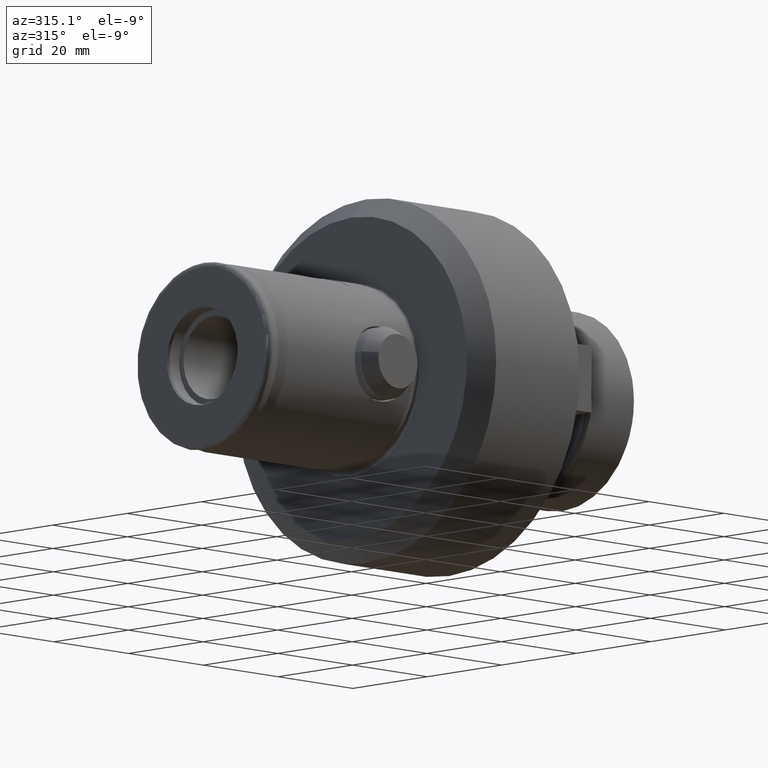
[diagram: clean part render]
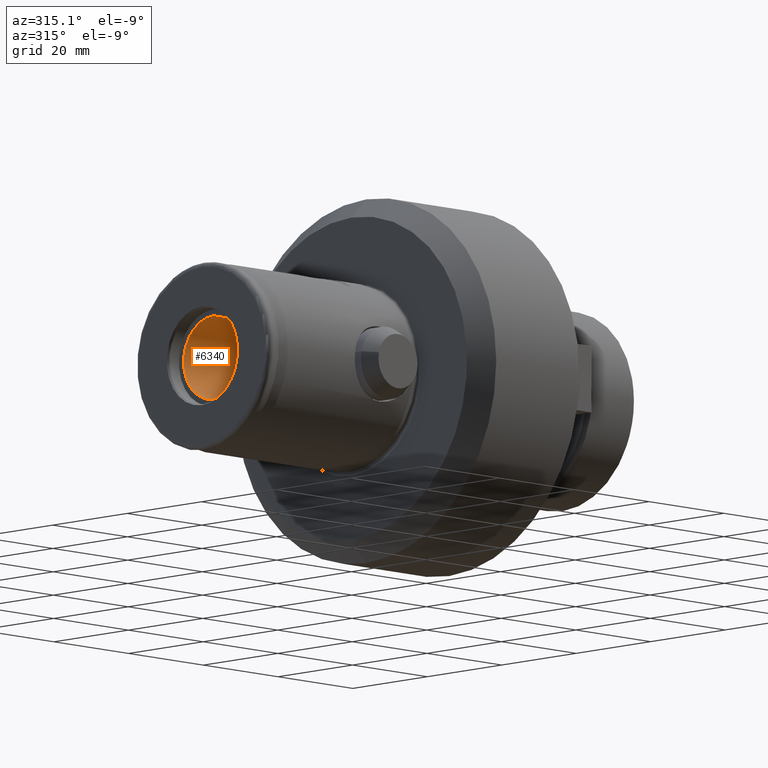
[diagram: same view with one face highlighted and labeled with its STEP entity id]
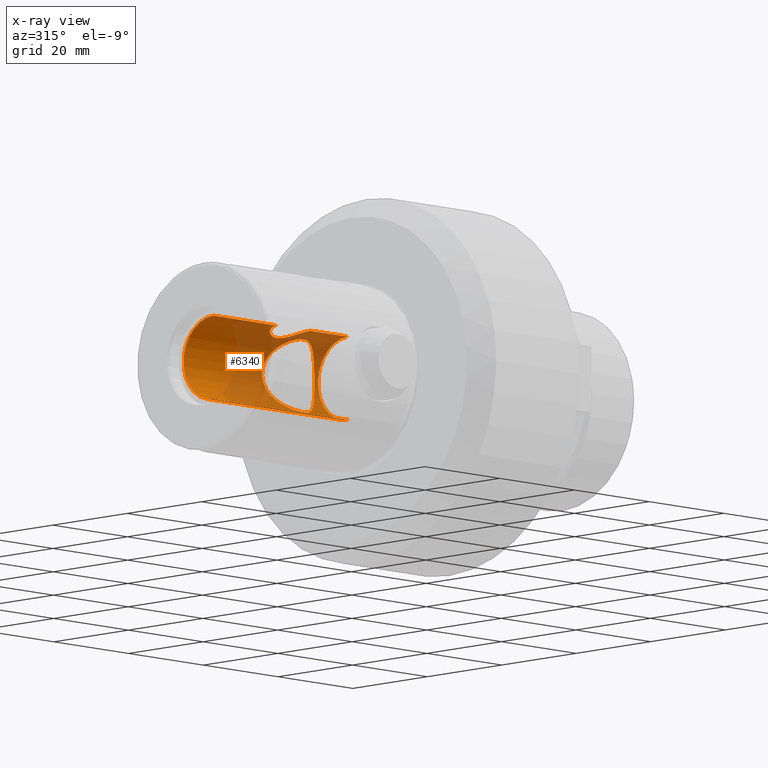
[diagram: x-ray of the same camera — body ghosted, the highlighted face saturated]
A machine part, auxiliary view. The second image highlights one B-rep face of the part: STEP entity #6340.
The next image is the same camera in x-ray: the body ghosted, the highlighted face saturated — about 55% of this face is hidden behind the body in this view.
In plain terms, the highlighted cylindrical surface (partial cylindrical patch) has radius 8 mm, axis along (-1, -0, -0).
Its self-contained STEP definition (entity closure, byte-faithful):
#2 = CARTESIAN_POINT ( 'NONE',  ( 30.75341472122459100, 3.872983346207416100, -7.000000000000000900 ) ) ;
#10 = CARTESIAN_POINT ( 'NONE',  ( 35.55855141161418900, 5.978557785983367600, 5.329700761963415800 ) ) ;
#85 = CARTESIAN_POINT ( 'NONE',  ( 34.13793107031343500, 4.982573697057826900, 6.260956148259884600 ) ) ;
#117 = CARTESIAN_POINT ( 'NONE',  ( 32.22090044364512100, 4.055153514021367500, -6.896709446665013000 ) ) ;
#165 = ORIENTED_EDGE ( 'NONE', *, *, #1801, .T. ) ;
#233 = EDGE_CURVE ( 'NONE', #4916, #8439, #515, .T. ) ;
#282 = CARTESIAN_POINT ( 'NONE',  ( 28.96936630641344800, 0.6025897533263323600, 7.982657568880966900 ) ) ;
#311 = CARTESIAN_POINT ( 'NONE',  ( 28.99999999999999600, 0.3039552728273297600, 8.000000000000001800 ) ) ;
#337 = CARTESIAN_POINT ( 'NONE',  ( 20.23920598036966500, 1.477341456959626200, 7.867333830361594100 ) ) ;
#366 = CARTESIAN_POINT ( 'NONE',  ( 20.60770144812946100, 2.277221731124198900, 7.673303683629273800 ) ) ;
#398 = CARTESIAN_POINT ( 'NONE',  ( 28.75628956257054700, 1.468402972155207400, 7.865408154721382800 ) ) ;
#499 = CARTESIAN_POINT ( 'NONE',  ( 29.09602210038190200, 4.311558885268359700, 6.739864978118574400 ) ) ;
#515 = B_SPLINE_CURVE_WITH_KNOTS ( 'NONE', 3,
 ( #3462, #2117, #6102, #6008, #2097, #4751, #3991, #8100, #85, #7454, #7478, #8128, #10, #2712, #3352, #6078, #1454, #4697, #5406, #4665, #660, #2741, #6696, #2679, #1367, #5351, #7363, #7430, #1335, #6040, #4724, #5463, #6815, #4101, #725, #2766, #1391, #2061, #6745, #750, #6129, #4080, #4784, #773, #5437, #117, #2002, #2798, #4338, #3117 ),
 .UNSPECIFIED., .F., .F.,
 ( 4, 2, 2, 2, 2, 2, 2, 2, 2, 2, 2, 2, 2, 2, 2, 2, 2, 2, 2, 2, 2, 2, 2, 2, 4 ),
 ( 4.590671271343872100E-017, 0.0007410764118145821300, 0.001482152823629118100, 0.002964305647258171100, 0.003705382059072706500, 0.004446458470887242700, 0.005928611294516329200, 0.006669687706330873700, 0.007410764118145417300, 0.008892916941774502800, 0.01037506976540359200, 0.01111614617721813300, 0.01185722258903267600, 0.01259829900084721700, 0.01333937541266175900, 0.01408045182447629900, 0.01482152823629084000, 0.01630368105991992700, 0.01778583388354901300, 0.01926798670717809800, 0.02075013953080718400, 0.02149121594262173900, 0.02223229235443628700, 0.02297336876625083800, 0.02371444517806538900 ),
 .UNSPECIFIED. ) ;
#533 = CARTESIAN_POINT ( 'NONE',  ( 28.66592305446396000, 4.517999929900974500, 6.603256513101743300 ) ) ;
#601 = DIRECTION ( 'NONE',  ( -1.000000000000000000, -0.0000000000000000000, -0.0000000000000000000 ) ) ;
#660 = CARTESIAN_POINT ( 'NONE',  ( 37.73937749234770000, 7.772813829932157900, 1.954234886555770600 ) ) ;
#682 = CARTESIAN_POINT ( 'NONE',  ( 26.94886962702532400, 5.603198860898251300, -5.712612966352318200 ) ) ;
#715 = EDGE_CURVE ( 'NONE', #8439, #4916, #8551, .T. ) ;
#725 = CARTESIAN_POINT ( 'NONE',  ( 36.98704210979404600, 7.129069216778431100, -3.654907970464085700 ) ) ;
#750 = CARTESIAN_POINT ( 'NONE',  ( 34.52085072694406900, 5.228052780230492600, -6.065323672382846500 ) ) ;
#773 = CARTESIAN_POINT ( 'NONE',  ( 32.90538900262170300, 4.312166394369731900, -6.739482880393575600 ) ) ;
#782 = EDGE_CURVE ( 'NONE', #5186, #2778, #3894, .T. ) ;
#922 = ORIENTED_EDGE ( 'NONE', *, *, #782, .T. ) ;
#969 = CARTESIAN_POINT ( 'NONE',  ( 24.01259493686570000, 7.988971967116976100, 0.4866045937506657800 ) ) ;
#972 = CARTESIAN_POINT ( 'NONE',  ( 21.11991901977559700, 2.984551923795119200, 7.425719981801746500 ) ) ;
#1000 = CARTESIAN_POINT ( 'NONE',  ( 21.75218630588040400, 3.575326788833691300, 7.158923600411578800 ) ) ;
#1048 = DIRECTION ( 'NONE',  ( -1.000000000000000000, -0.0000000000000000000, -0.0000000000000000000 ) ) ;
#1056 = CARTESIAN_POINT ( 'NONE',  ( 24.80437404865701000, 4.499964798875890200, 6.614402226255022800 ) ) ;
#1116 = CARTESIAN_POINT ( 'NONE',  ( 24.50650095462512100, 7.560630500432985500, -2.624662021152091900 ) ) ;
#1152 = CARTESIAN_POINT ( 'NONE',  ( 0.0000000000000000000, 0.0000000000000000000, 8.000000000000000000 ) ) ;
#1178 = DIRECTION ( 'NONE',  ( -1.000000000000000000, -0.0000000000000000000, -0.0000000000000000000 ) ) ;
#1208 = EDGE_LOOP ( 'NONE', ( #1492, #1802, #922, #4167, #6855, #165 ) ) ;
#1227 = CARTESIAN_POINT ( 'NONE',  ( 28.45650230898550200, 4.630570762695055200, 6.525251823769629300 ) ) ;
#1275 = VERTEX_POINT ( 'NONE', #6981 ) ;
#1335 = CARTESIAN_POINT ( 'NONE',  ( 37.89657681984990500, 7.909623561254247400, -1.223333147197737600 ) ) ;
#1367 = CARTESIAN_POINT ( 'NONE',  ( 37.99967623635704700, 7.999716706867209500, 0.2553837469404187700 ) ) ;
#1391 = CARTESIAN_POINT ( 'NONE',  ( 36.18332884090522600, 6.467625354216546700, -4.724130263467351700 ) ) ;
#1454 = CARTESIAN_POINT ( 'NONE',  ( 36.59568461713910600, 6.804890004860985700, 4.211636175206129100 ) ) ;
#1462 = CIRCLE ( 'NONE', #5340, 8.000000000000000000 ) ;
#1492 = ORIENTED_EDGE ( 'NONE', *, *, #4373, .F. ) ;
#1499 = DIRECTION ( 'NONE',  ( 0.0000000000000000000, 0.0000000000000000000, 1.000000000000000000 ) ) ;
#1516 = EDGE_CURVE ( 'NONE', #7734, #1275, #8394, .T. ) ;
#1526 = FACE_OUTER_BOUND ( 'NONE', #1208, .T. ) ;
#1636 = CYLINDRICAL_SURFACE ( 'NONE', #2781, 8.000000000000000000 ) ;
#1672 = CARTESIAN_POINT ( 'NONE',  ( 20.14945777583613000, 1.188220059690631400, 7.916740125071215500 ) ) ;
#1698 = CARTESIAN_POINT ( 'NONE',  ( 25.97544591273078400, 4.261330998162102400, 6.771907494521349800 ) ) ;
#1784 = CARTESIAN_POINT ( 'NONE',  ( 24.27183329226400600, 7.763170223860409900, -1.946708591556181000 ) ) ;
#1801 = EDGE_CURVE ( 'NONE', #1275, #4336, #4508, .T. ) ;
#1802 = ORIENTED_EDGE ( 'NONE', *, *, #3594, .F. ) ;
#1808 = CARTESIAN_POINT ( 'NONE',  ( 25.01472903792675200, 7.127611959860360000, 3.657263872402699300 ) ) ;
#1815 = CARTESIAN_POINT ( 'NONE',  ( 29.78019303000144500, 4.054865476716300600, -6.896872378908236500 ) ) ;
#1840 = CARTESIAN_POINT ( 'NONE',  ( 24.20401643006870900, 7.822069272577855300, 1.695330024425967900 ) ) ;
#1875 = CARTESIAN_POINT ( 'NONE',  ( 39.00000000000000700, 0.0000000000000000000, 0.0000000000000000000 ) ) ;
#1878 = CARTESIAN_POINT ( 'NONE',  ( 24.10246520295656600, 7.910458981541827600, 1.218010795547848100 ) ) ;
#2002 = CARTESIAN_POINT ( 'NONE',  ( 31.98474249579056700, 3.988991554300620900, -6.934747940482933100 ) ) ;
#2055 = CARTESIAN_POINT ( 'NONE',  ( 24.05466032900179100, 7.952056936992425700, -0.9989638608996093100 ) ) ;
#2061 = CARTESIAN_POINT ( 'NONE',  ( 35.56719605291187500, 5.985195037363310700, -5.322125969331659200 ) ) ;
#2097 = CARTESIAN_POINT ( 'NONE',  ( 32.21939060143660800, 4.054646151562716100, 6.897013289270022400 ) ) ;
#2117 = CARTESIAN_POINT ( 'NONE',  ( 31.25150952951509000, 3.872983346207413500, 7.000000000000000000 ) ) ;
#2173 = DIRECTION ( 'NONE',  ( 0.0000000000000000000, 0.0000000000000000000, 1.000000000000000000 ) ) ;
#2230 = CARTESIAN_POINT ( 'NONE',  ( 23.99956464490029600, 8.000380935567911000, 0.2374143082818990800 ) ) ;
#2285 = EDGE_LOOP ( 'NONE', ( #7072, #6841 ) ) ;
#2322 = CARTESIAN_POINT ( 'NONE',  ( 20.00000000000000000, 0.3038662765850915800, 8.000000000000001800 ) ) ;
#2348 = CARTESIAN_POINT ( 'NONE',  ( 22.23186783471452400, 3.897309100564185300, 6.988857598931407000 ) ) ;
#2379 = CARTESIAN_POINT ( 'NONE',  ( 26.77387740547222000, 3.894053566602881000, 6.990703642075265700 ) ) ;
#2412 = CARTESIAN_POINT ( 'NONE',  ( 28.88079942607053100, 1.039559419402969800, 7.933523824993354600 ) ) ;
#2435 = CARTESIAN_POINT ( 'NONE',  ( 0.0000000000000000000, 0.0000000000000000000, 0.0000000000000000000 ) ) ;
#2484 = CARTESIAN_POINT ( 'NONE',  ( 26.94395453693563900, 5.606767190425704200, 5.709096391447106500 ) ) ;
#2569 = CARTESIAN_POINT ( 'NONE',  ( 24.06404719125111300, 7.944009374381279200, 0.9763053732221804700 ) ) ;
#2670 = CARTESIAN_POINT ( 'NONE',  ( 27.85707477994499800, 4.977010234343023100, -6.269956170842671200 ) ) ;
#2679 = CARTESIAN_POINT ( 'NONE',  ( 37.98639055055733100, 7.988084185479391600, 0.5012865904527222800 ) ) ;
#2705 = CARTESIAN_POINT ( 'NONE',  ( 30.50655199385513300, 3.896853369577716600, -6.986939365355582700 ) ) ;
#2712 = CARTESIAN_POINT ( 'NONE',  ( 36.02350202804206700, 6.342417771066957100, 4.879646777212258300 ) ) ;
#2741 = CARTESIAN_POINT ( 'NONE',  ( 37.89387460141014000, 7.907266498770184200, 1.238569224581665100 ) ) ;
#2766 = CARTESIAN_POINT ( 'NONE',  ( 36.46904912723343300, 6.699959181163977800, -4.392325937463684900 ) ) ;
#2778 = VERTEX_POINT ( 'NONE', #7395 ) ;
#2781 = AXIS2_PLACEMENT_3D ( 'NONE', #2435, #3134, #7829 ) ;
#2798 = CARTESIAN_POINT ( 'NONE',  ( 31.49578123250102700, 3.897195769751125500, -6.986748009664292000 ) ) ;
#2992 = CARTESIAN_POINT ( 'NONE',  ( 28.99999999999999600, 0.0000000000000000000, 8.000000000000000000 ) ) ;
#3017 = CARTESIAN_POINT ( 'NONE',  ( 23.02418142182259300, 4.261139167944569400, 6.772019438513685200 ) ) ;
#3048 = CARTESIAN_POINT ( 'NONE',  ( 27.47656300916169400, 3.387192595048163400, 7.250943801692805800 ) ) ;
#3104 = CARTESIAN_POINT ( 'NONE',  ( 25.14813011631007800, 7.017061381128079300, -3.847834655708963300 ) ) ;
#3117 = CARTESIAN_POINT ( 'NONE',  ( 31.00000000000000000, 3.872983346207414800, -7.000000000000000000 ) ) ;
#3134 = DIRECTION ( 'NONE',  ( -1.000000000000000000, -0.0000000000000000000, -0.0000000000000000000 ) ) ;
#3158 = CARTESIAN_POINT ( 'NONE',  ( 29.31751508531601400, 4.217140374111857600, 6.798871005101089400 ) ) ;
#3183 = CARTESIAN_POINT ( 'NONE',  ( 30.50233205902819100, 3.897572823664293900, 6.986533793702783200 ) ) ;
#3251 = CARTESIAN_POINT ( 'NONE',  ( 25.81104634559652300, 6.472103622738511100, 4.718209453474950800 ) ) ;
#3287 = CARTESIAN_POINT ( 'NONE',  ( 26.77525854670176400, 5.730294773337267800, -5.585463241233657800 ) ) ;
#3352 = CARTESIAN_POINT ( 'NONE',  ( 36.17397533346737500, 6.462424403061164400, 4.719993161877292600 ) ) ;
#3431 = CARTESIAN_POINT ( 'NONE',  ( 24.00090422832445500, 7.999208800510261100, -0.5123487462078555300 ) ) ;
#3462 = CARTESIAN_POINT ( 'NONE',  ( 31.00000000000002800, 3.872983346207531600, 7.000000000000008000 ) ) ;
#3492 = CARTESIAN_POINT ( 'NONE',  ( 31.00000000000000000, 3.872983346207414800, -7.000000000000000000 ) ) ;
#3518 = FACE_BOUND ( 'NONE', #2285, .T. ) ;
#3594 = EDGE_CURVE ( 'NONE', #5186, #5783, #1462, .T. ) ;
#3685 = CARTESIAN_POINT ( 'NONE',  ( 23.31227099659225700, 4.350650956824873500, 6.713932718652853500 ) ) ;
#3712 = CARTESIAN_POINT ( 'NONE',  ( 23.89654528496663100, 4.469307143233852900, 6.635536900519603900 ) ) ;
#3883 = CARTESIAN_POINT ( 'NONE',  ( 24.26770867588235000, 7.766746700706380400, 1.932364216009924800 ) ) ;
#3894 = LINE ( 'NONE', #4369, #5383 ) ;
#3910 = CARTESIAN_POINT ( 'NONE',  ( 26.77208157100739400, 5.732635112101784000, 5.583075651238127400 ) ) ;
#3914 = CARTESIAN_POINT ( 'NONE',  ( 31.00000000000002800, 3.872983346207531600, 7.000000000000008000 ) ) ;
#3991 = CARTESIAN_POINT ( 'NONE',  ( 33.33618302869197000, 4.511018792922472500, 6.613199792375693800 ) ) ;
#4080 = CARTESIAN_POINT ( 'NONE',  ( 33.54334667312675600, 4.630533659732758900, -6.525250478903919000 ) ) ;
#4101 = CARTESIAN_POINT ( 'NONE',  ( 37.21333961301601800, 7.320924164744735800, -3.258114922168188400 ) ) ;
#4112 = CARTESIAN_POINT ( 'NONE',  ( 19.99999999999999300, 2.429691588080716400E-024, 8.000000000000000000 ) ) ;
#4167 = ORIENTED_EDGE ( 'NONE', *, *, #4707, .F. ) ;
#4262 = CARTESIAN_POINT ( 'NONE',  ( 39.00000000000000700, 0.0000000000000000000, 8.000000000000000000 ) ) ;
#4278 = CARTESIAN_POINT ( 'NONE',  ( 27.25508783442825600, 3.569826698773356900, 7.161698676405056800 ) ) ;
#4304 = CARTESIAN_POINT ( 'NONE',  ( 22.48561969521275800, 4.034553193597802500, 6.909409150732667400 ) ) ;
#4325 = CARTESIAN_POINT ( 'NONE',  ( 25.68783680630145500, 4.350660611936763900, 6.713927524648777700 ) ) ;
#4336 = VERTEX_POINT ( 'NONE', #8608 ) ;
#4338 = CARTESIAN_POINT ( 'NONE',  ( 31.24663314475430600, 3.872983346207416600, -7.000000000000001800 ) ) ;
#4350 = CARTESIAN_POINT ( 'NONE',  ( 24.19666770055462400, 4.500035140832922700, 6.614354370086198600 ) ) ;
#4369 = CARTESIAN_POINT ( 'NONE',  ( 0.0000000000000000000, 0.0000000000000000000, 8.000000000000000000 ) ) ;
#4373 = EDGE_CURVE ( 'NONE', #5783, #4336, #5093, .T. ) ;
#4383 = CARTESIAN_POINT ( 'NONE',  ( 28.53275973382323400, 2.018474218548008500, 7.746206024055875400 ) ) ;
#4498 = CARTESIAN_POINT ( 'NONE',  ( 25.52746682110644400, 6.702835456357100000, 4.387530983107529500 ) ) ;
#4508 = CIRCLE ( 'NONE', #8187, 8.000000000000000000 ) ;
#4556 = CARTESIAN_POINT ( 'NONE',  ( 24.78435316828818100, 7.322888826826122100, 3.253468837334270200 ) ) ;
#4592 = CARTESIAN_POINT ( 'NONE',  ( 30.01791474981000000, 3.988469878905456700, 6.935044079988344400 ) ) ;
#4658 = CARTESIAN_POINT ( 'NONE',  ( 26.28152545996070800, 6.103671481951041100, -5.175140377973500300 ) ) ;
#4665 = CARTESIAN_POINT ( 'NONE',  ( 37.59008089059902600, 7.643256047235722100, 2.406920330758379700 ) ) ;
#4689 = CARTESIAN_POINT ( 'NONE',  ( 29.09325734288529500, 4.295542750490962000, -6.751551159515619500 ) ) ;
#4697 = CARTESIAN_POINT ( 'NONE',  ( 36.98016515217926800, 7.123323790367662100, 3.665499581207127800 ) ) ;
#4707 = EDGE_CURVE ( 'NONE', #7734, #2778, #7660, .T. ) ;
#4724 = CARTESIAN_POINT ( 'NONE',  ( 37.73217415248279800, 7.766645554248963600, -1.932705101340260300 ) ) ;
#4751 = CARTESIAN_POINT ( 'NONE',  ( 32.91208899918225200, 4.297563524002334200, 6.750313967821282000 ) ) ;
#4784 = CARTESIAN_POINT ( 'NONE',  ( 33.33639898924870700, 4.519184882075791200, -6.602452310275882800 ) ) ;
#4916 = VERTEX_POINT ( 'NONE', #3914 ) ;
#5016 = CARTESIAN_POINT ( 'NONE',  ( 20.93560259634440300, 2.762389903400854800, 7.512291944239912300 ) ) ;
#5041 = CARTESIAN_POINT ( 'NONE',  ( 25.10243318942875800, 4.469483000408113900, 6.635419525211447400 ) ) ;
#5093 = LINE ( 'NONE', #8550, #6047 ) ;
#5133 = CARTESIAN_POINT ( 'NONE',  ( 24.69557899288613400, 7.398873424159362800, -3.051009069574201100 ) ) ;
#5158 = CARTESIAN_POINT ( 'NONE',  ( 30.01610137488170300, 3.988738115460895600, -6.934894096193115600 ) ) ;
#5186 = VERTEX_POINT ( 'NONE', #4262 ) ;
#5340 = AXIS2_PLACEMENT_3D ( 'NONE', #1875, #1048, #1499 ) ;
#5351 = CARTESIAN_POINT ( 'NONE',  ( 38.00031210447502900, 8.000273091361835400, -0.2373156378398683700 ) ) ;
#5373 = CARTESIAN_POINT ( 'NONE',  ( 25.81916881442153400, 6.465618769444694700, -4.726870835284253200 ) ) ;
#5383 = VECTOR ( 'NONE', #7807, 1000.000000000000000 ) ;
#5406 = CARTESIAN_POINT ( 'NONE',  ( 37.20765299464397900, 7.316088610786462900, 3.269170524971757100 ) ) ;
#5437 = CARTESIAN_POINT ( 'NONE',  ( 32.68058799732991600, 4.216402275134138100, -6.799325192123256500 ) ) ;
#5454 = CARTESIAN_POINT ( 'NONE',  ( 3.000000000000002700, 0.0000000000000000000, 0.0000000000000000000 ) ) ;
#5463 = CARTESIAN_POINT ( 'NONE',  ( 37.58410927264451800, 7.638658865278713100, -2.388937611990058100 ) ) ;
#5626 = CARTESIAN_POINT ( 'NONE',  ( 21.52679531925315400, 3.390066598916450200, 7.249573497032078400 ) ) ;
#5679 = CARTESIAN_POINT ( 'NONE',  ( 20.03063709051254500, 0.6032244505835396800, 7.982653780565833300 ) ) ;
#5742 = CARTESIAN_POINT ( 'NONE',  ( 28.84411403889635000, 1.183588334745175000, 7.913278169181655400 ) ) ;
#5783 = VERTEX_POINT ( 'NONE', #6587 ) ;
#5796 = CARTESIAN_POINT ( 'NONE',  ( 24.42139503826952000, 7.633913014964919700, -2.404133595501872600 ) ) ;
#5853 = CARTESIAN_POINT ( 'NONE',  ( 29.77802741755636600, 4.055457364967499400, 6.896534306439683300 ) ) ;
#6008 = CARTESIAN_POINT ( 'NONE',  ( 31.98074286846649300, 3.988177731900008500, 6.935210667922926400 ) ) ;
#6035 = CARTESIAN_POINT ( 'NONE',  ( 28.65990889001585600, 4.513167217921819400, -6.611679281401895200 ) ) ;
#6040 = CARTESIAN_POINT ( 'NONE',  ( 37.79487699569075700, 7.821107749879473700, -1.699694806297965500 ) ) ;
#6047 = VECTOR ( 'NONE', #601, 1000.000000000000000 ) ;
#6078 = CARTESIAN_POINT ( 'NONE',  ( 36.46003205259938100, 6.693643135794160600, 4.385932761008150200 ) ) ;
#6102 = CARTESIAN_POINT ( 'NONE',  ( 31.49764609907175500, 3.897609098806158900, 6.986512144310525600 ) ) ;
#6129 = CARTESIAN_POINT ( 'NONE',  ( 34.14489612991594200, 4.978281868758787500, -6.268943513910698200 ) ) ;
#6340 = ADVANCED_FACE ( 'NONE', ( #1526, #3518 ), #1636, .F. ) ;
#6390 = CARTESIAN_POINT ( 'NONE',  ( 26.51566801564634800, 4.033976322190242500, 6.909754555862322800 ) ) ;
#6411 = CARTESIAN_POINT ( 'NONE',  ( 19.99999999999999300, 2.429691588080716400E-024, 8.000000000000000000 ) ) ;
#6500 = CARTESIAN_POINT ( 'NONE',  ( 26.43810958514764000, 5.983197743966744800, 5.313678933897073800 ) ) ;
#6524 = CARTESIAN_POINT ( 'NONE',  ( 24.41611980913625500, 7.638460984242294100, 2.389623310996395100 ) ) ;
#6587 = CARTESIAN_POINT ( 'NONE',  ( 39.00000000000000700, 9.797174393178825700E-016, -8.000000000000000000 ) ) ;
#6618 = VECTOR ( 'NONE', #1178, 1000.000000000000000 ) ;
#6696 = CARTESIAN_POINT ( 'NONE',  ( 37.93372130449692700, 7.942060636750627000, 0.9921945586677689600 ) ) ;
#6715 = CARTESIAN_POINT ( 'NONE',  ( 25.53525059416265100, 6.696459006977324400, -4.397427045972277100 ) ) ;
#6745 = CARTESIAN_POINT ( 'NONE',  ( 35.23608176211069300, 5.734155101385031400, -5.589289077951106000 ) ) ;
#6815 = CARTESIAN_POINT ( 'NONE',  ( 37.49817919220206600, 7.564649243936247400, -2.613215009182050100 ) ) ;
#6840 = CARTESIAN_POINT ( 'NONE',  ( 31.00000000000000000, 3.872983346207414800, -7.000000000000000000 ) ) ;
#6841 = ORIENTED_EDGE ( 'NONE', *, *, #715, .T. ) ;
#6855 = ORIENTED_EDGE ( 'NONE', *, *, #1516, .T. ) ;
#6981 = CARTESIAN_POINT ( 'NONE',  ( 3.000000000000002700, 0.0000000000000000000, 8.000000000000000000 ) ) ;
#7010 = CARTESIAN_POINT ( 'NONE',  ( 28.70481031364444700, 1.609788040920772800, 7.837606072508625000 ) ) ;
#7061 = CARTESIAN_POINT ( 'NONE',  ( 27.88420106937394700, 2.979963782583110500, 7.427588811030762600 ) ) ;
#7072 = ORIENTED_EDGE ( 'NONE', *, *, #233, .T. ) ;
#7149 = CARTESIAN_POINT ( 'NONE',  ( 26.27584553510029200, 6.108056706286475900, 5.170014478738923300 ) ) ;
#7176 = CARTESIAN_POINT ( 'NONE',  ( 27.85006981514655400, 4.981293055620336800, 6.266666362729792700 ) ) ;
#7181 = CARTESIAN_POINT ( 'NONE',  ( 27.48251403914352100, 5.225842342489485800, -6.067100569784236600 ) ) ;
#7363 = CARTESIAN_POINT ( 'NONE',  ( 37.98766378670690400, 7.989198065058690900, -0.4841121308791095900 ) ) ;
#7395 = CARTESIAN_POINT ( 'NONE',  ( 28.99999999999999600, 0.0000000000000000000, 8.000000000000000000 ) ) ;
#7430 = CARTESIAN_POINT ( 'NONE',  ( 37.93571255215222500, 7.943799414182385600, -0.9786220645567993400 ) ) ;
#7454 = CARTESIAN_POINT ( 'NONE',  ( 34.51608759526995800, 5.228986634347554800, 6.056674938847248100 ) ) ;
#7478 = CARTESIAN_POINT ( 'NONE',  ( 34.69843340959559400, 5.353767644453450100, 5.946977934507337700 ) ) ;
#7536 = DIRECTION ( 'NONE',  ( -1.000000000000000000, -0.0000000000000000000, -0.0000000000000000000 ) ) ;
#7660 = B_SPLINE_CURVE_WITH_KNOTS ( 'NONE', 3,
 ( #6411, #2322, #5679, #1672, #337, #8373, #366, #5016, #972, #5626, #1000, #2348, #4304, #3017, #3685, #3712, #4350, #1056, #5041, #4325, #1698, #6390, #2379, #4278, #3048, #7061, #7742, #8398, #4383, #7010, #398, #5742, #2412, #282, #311, #2992 ),
 .UNSPECIFIED., .F., .F.,
 ( 4, 2, 2, 2, 2, 2, 2, 2, 2, 2, 2, 2, 2, 2, 2, 2, 2, 4 ),
 ( 0.01438585655599137000, 0.01528358065565205800, 0.01618130475531274700, 0.01707902885497343500, 0.01797675295463412000, 0.01887447705429480900, 0.01977220115395549700, 0.02066992525361618600, 0.02156764935327687400, 0.02246537345293756300, 0.02336309755259825100, 0.02426082165225893600, 0.02515854575191962800, 0.02605626985158031300, 0.02695399395124099800, 0.02740285600107134400, 0.02785171805090168700, 0.02874944215056237500 ),
 .UNSPECIFIED. ) ;
#7734 = VERTEX_POINT ( 'NONE', #4112 ) ;
#7742 = CARTESIAN_POINT ( 'NONE',  ( 28.07083717746639500, 2.753689553268043400, 7.515388987606607800 ) ) ;
#7794 = CARTESIAN_POINT ( 'NONE',  ( 25.02546966226504600, 7.119784853606727600, -3.654769069399912400 ) ) ;
#7807 = DIRECTION ( 'NONE',  ( -1.000000000000000000, -0.0000000000000000000, -0.0000000000000000000 ) ) ;
#7824 = CARTESIAN_POINT ( 'NONE',  ( 31.00000000000002800, 3.872983346207531600, 7.000000000000008000 ) ) ;
#7829 = DIRECTION ( 'NONE',  ( 0.0000000000000000000, 0.0000000000000000000, 1.000000000000000000 ) ) ;
#7851 = CARTESIAN_POINT ( 'NONE',  ( 30.74853928286104600, 3.872983346207413500, 6.999999999999999100 ) ) ;
#7978 = CARTESIAN_POINT ( 'NONE',  ( 26.44179999664594400, 5.980386702605175100, -5.316827314838427300 ) ) ;
#8100 = CARTESIAN_POINT ( 'NONE',  ( 33.94127865411983400, 4.860453165376525500, 6.355857183588670800 ) ) ;
#8128 = CARTESIAN_POINT ( 'NONE',  ( 35.22816672748826500, 5.728443688976427400, 5.594857556674826400 ) ) ;
#8184 = CARTESIAN_POINT ( 'NONE',  ( 24.20794932454041200, 7.818651992122303400, -1.710837691664580200 ) ) ;
#8187 = AXIS2_PLACEMENT_3D ( 'NONE', #5454, #7536, #2173 ) ;
#8373 = CARTESIAN_POINT ( 'NONE',  ( 20.46835379818647700, 2.020577234745513100, 7.745627606413299800 ) ) ;
#8394 = LINE ( 'NONE', #1152, #6618 ) ;
#8398 = CARTESIAN_POINT ( 'NONE',  ( 28.39402991638740700, 2.273810747189292300, 7.674220642956695900 ) ) ;
#8439 = VERTEX_POINT ( 'NONE', #6840 ) ;
#8466 = CARTESIAN_POINT ( 'NONE',  ( 24.79955884668913100, 7.310389463004233900, -3.256820414374531800 ) ) ;
#8513 = CARTESIAN_POINT ( 'NONE',  ( 24.50085358802247300, 7.565481669576085400, 2.610733071131220200 ) ) ;
#8550 = CARTESIAN_POINT ( 'NONE',  ( 0.0000000000000000000, 9.797174393178825700E-016, -8.000000000000000000 ) ) ;
#8551 = B_SPLINE_CURVE_WITH_KNOTS ( 'NONE', 3,
 ( #3492, #2, #2705, #5158, #1815, #4689, #6035, #2670, #7181, #682, #3287, #7978, #4658, #5373, #6715, #3104, #7794, #8466, #5133, #1116, #5796, #1784, #8184, #2055, #3431, #2230, #969, #2569, #1878, #1840, #3883, #6524, #8513, #4556, #1808, #4498, #3251, #7149, #6500, #3910, #2484, #8595, #7176, #1227, #533, #499, #3158, #5853, #4592, #3183, #7851, #7824 ),
 .UNSPECIFIED., .F., .F.,
 ( 4, 2, 2, 2, 2, 2, 2, 2, 2, 2, 2, 2, 2, 2, 2, 2, 2, 2, 2, 2, 2, 2, 2, 2, 2, 4 ),
 ( 0.02371444517806538900, 0.02445537776351823900, 0.02519631034897108400, 0.02667817551987677900, 0.02816004069078247700, 0.02890097327623531900, 0.02964190586168816500, 0.03112377103259385300, 0.03186470361804669800, 0.03260563620349954400, 0.03334656878895239700, 0.03408750137440523500, 0.03556936654531093300, 0.03631029913076377900, 0.03705123171621663200, 0.03779216430166947700, 0.03853309688712232300, 0.04001496205802801400, 0.04149682722893371200, 0.04223775981438655800, 0.04297869239983941000, 0.04446055757074510200, 0.04520149015619794000, 0.04594242274165077900, 0.04668335532710361800, 0.04742428791255645600 ),
 .UNSPECIFIED. ) ;
#8595 = CARTESIAN_POINT ( 'NONE',  ( 27.47539365466652900, 5.230696321363138800, 6.062862008288852200 ) ) ;
#8608 = CARTESIAN_POINT ( 'NONE',  ( 3.000000000000002700, 9.797174393178825700E-016, -8.000000000000000000 ) ) ;